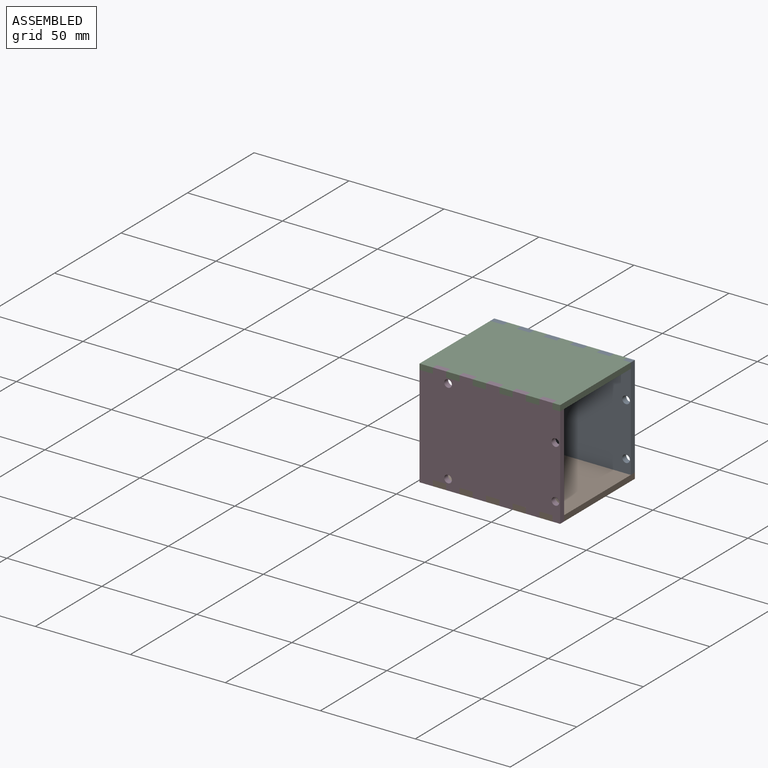
[diagram: assembled view]
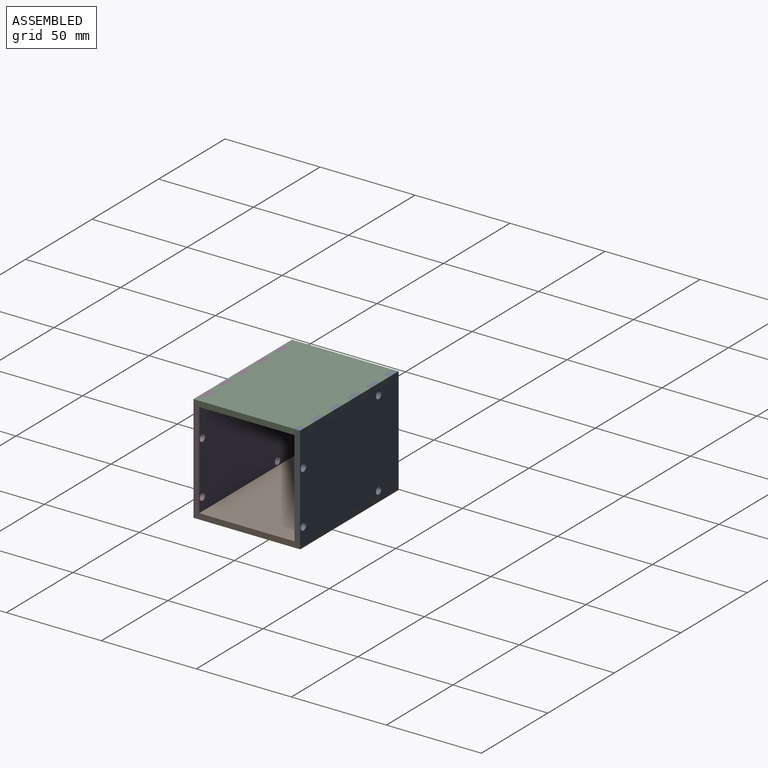
[diagram: assembled view, second angle]
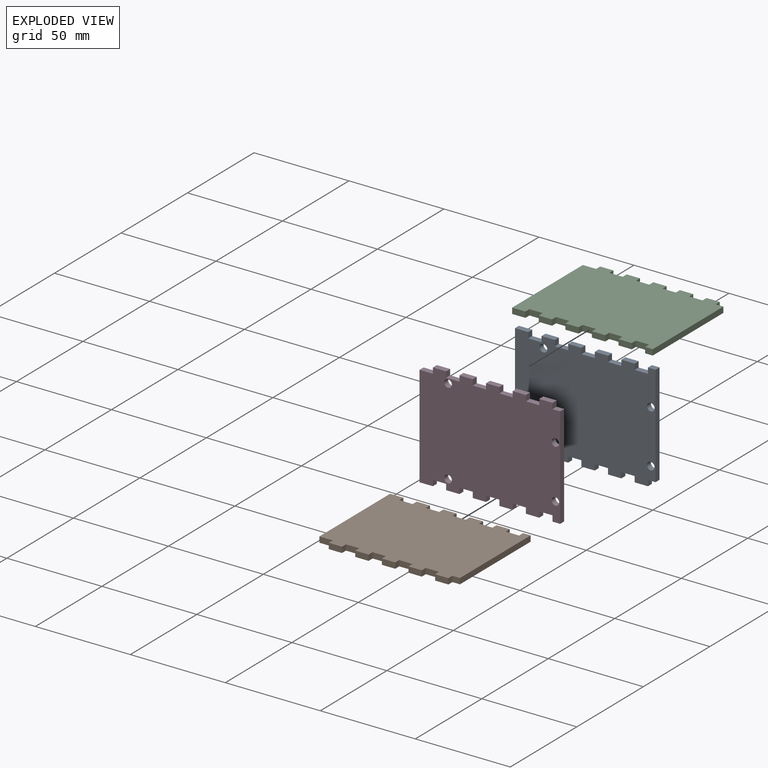
[diagram: exploded view]
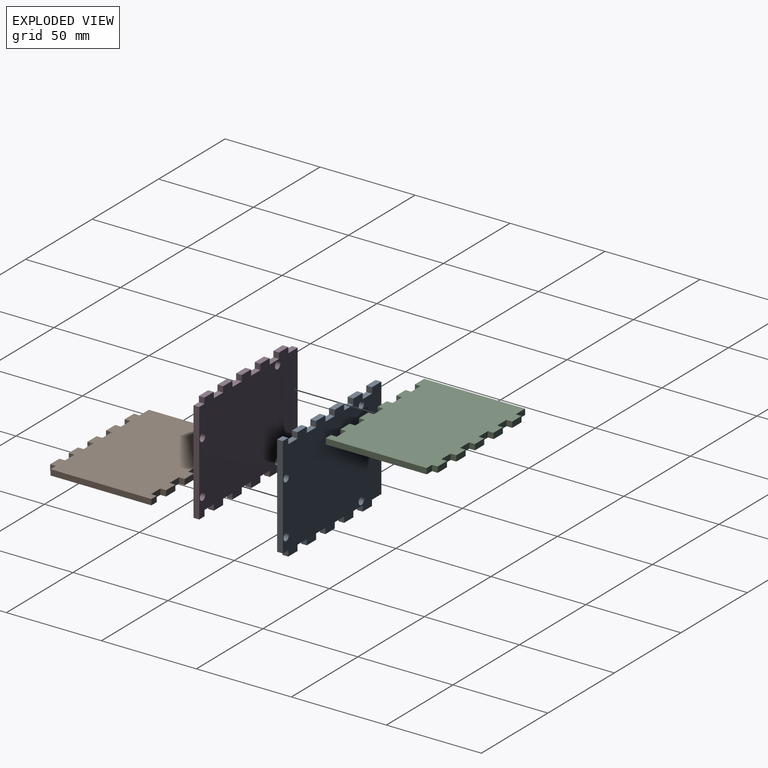
[diagram: exploded view, second angle]
ASSEMBLY  parts=4 mates=3
PART A: 50 faces, bbox 74x56.5x3 mm
  f0: plane 74x56.5mm, normal (0,0,1), area 3908.7mm2, adj f2,f3,f4,f5,f6,f7,f8,f9
  f1: plane 74x56.5mm, normal (0,0,-1), area 3908.7mm2, adj f2,f3,f4,f5,f6,f7,f8,f9
  f2: plane 53.5x3mm, normal (-1,0,0), area 160.5mm2, adj f0,f1,f3,f45
  f3: plane 7x3mm, normal (0,-1,0), area 21mm2, adj f0,f1,f2,f4
  f4: plane 3x3mm, normal (-1,0,0), area 9mm2, adj f0,f1,f3,f5
  f5: plane 7x3mm, normal (0,-1,0), area 21mm2, adj f0,f1,f4,f6
  f6: plane 3x3mm, normal (1,0,0), area 9mm2, adj f0,f1,f5,f7
  f7: plane 7x3mm, normal (0,-1,0), area 21mm2, adj f0,f1,f6,f8
  f8: plane 3x3mm, normal (-1,0,0), area 9mm2, adj f0,f1,f7,f9
  f9: plane 7x3mm, normal (0,-1,0), area 21mm2, adj f0,f1,f8,f10
  f10: plane 3x3mm, normal (1,0,0), area 9mm2, adj f0,f1,f9,f11
  f11: plane 7x3mm, normal (0,-1,0), area 21mm2, adj f0,f1,f10,f12
  f12: plane 3x3mm, normal (-1,0,0), area 9mm2, adj f0,f1,f11,f13
  f13: plane 7x3mm, normal (0,-1,0), area 21mm2, adj f0,f1,f12,f14
  f14: plane 3x3mm, normal (1,0,0), area 9mm2, adj f0,f1,f13,f15
  f15: plane 7x3mm, normal (0,-1,0), area 21mm2, adj f0,f1,f14,f16
  f16: plane 3x3mm, normal (-1,0,0), area 9mm2, adj f0,f1,f15,f17
  f17: plane 7x3mm, normal (0,-1,0), area 21mm2, adj f0,f1,f16,f18
  f18: plane 3x3mm, normal (1,0,0), area 9mm2, adj f0,f1,f17,f19
  f19: plane 7x3mm, normal (0,-1,0), area 21mm2, adj f0,f1,f18,f20
  f20: plane 3x3mm, normal (-1,0,0), area 9mm2, adj f0,f1,f19,f21
  f21: plane 7x3mm, normal (0,-1,0), area 21mm2, adj f0,f1,f20,f22
  f22: plane 3x3mm, normal (1,0,0), area 9mm2, adj f0,f1,f21,f23
  f23: plane 4x3mm, normal (0,-1,0), area 12mm2, adj f0,f1,f22,f24
  f24: plane 53.5x3mm, normal (1,0,0), area 160.5mm2, adj f0,f1,f23,f25
  f25: plane 4x3mm, normal (0,1,0), area 12mm2, adj f0,f1,f24,f26
  f26: plane 3x3mm, normal (-1,0,0), area 9mm2, adj f0,f1,f25,f27
  f27: plane 7x3mm, normal (0,1,0), area 21mm2, adj f0,f1,f26,f28
  f28: plane 3x3mm, normal (1,0,0), area 9mm2, adj f0,f1,f27,f29
  f29: plane 7x3mm, normal (0,1,0), area 21mm2, adj f0,f1,f28,f30
  f30: plane 3x3mm, normal (-1,0,0), area 9mm2, adj f0,f1,f29,f31
  f31: plane 7x3mm, normal (0,1,0), area 21mm2, adj f0,f1,f30,f32
  f32: plane 3x3mm, normal (1,0,0), area 9mm2, adj f0,f1,f31,f33
  f33: plane 7x3mm, normal (0,1,0), area 21mm2, adj f0,f1,f32,f34
  f34: plane 3x3mm, normal (-1,0,0), area 9mm2, adj f0,f1,f33,f35
  f35: plane 7x3mm, normal (0,1,0), area 21mm2, adj f0,f1,f34,f36
  f36: plane 3x3mm, normal (1,0,0), area 9mm2, adj f0,f1,f35,f37
  f37: plane 7x3mm, normal (0,1,0), area 21mm2, adj f0,f1,f36,f38
  f38: plane 3x3mm, normal (-1,0,0), area 9mm2, adj f0,f1,f37,f39
  f39: plane 7x3mm, normal (0,1,0), area 21mm2, adj f0,f1,f38,f40
  f40: plane 3x3mm, normal (1,0,0), area 9mm2, adj f0,f1,f39,f41
  f41: plane 7x3mm, normal (0,1,0), area 21mm2, adj f0,f1,f40,f42
  f42: plane 3x3mm, normal (-1,0,0), area 9mm2, adj f0,f1,f41,f43
  f43: plane 7x3mm, normal (0,1,0), area 21mm2, adj f0,f1,f42,f44
  f44: plane 3x3mm, normal (1,0,0), area 9mm2, adj f0,f1,f43,f45
  f45: plane 7x3mm, normal (0,1,0), area 21mm2, adj f0,f1,f2,f44
  f46: cylinder r=2mm len=4mm, axis (0,0,1), area 37.7mm2, adj f0,f1
  f47: cylinder r=2mm len=4mm, axis (0,0,1), area 37.7mm2, adj f0,f1
  f48: cylinder r=2mm len=4mm, axis (0,0,1), area 37.7mm2, adj f0,f1
  f49: cylinder r=2mm len=4mm, axis (0,0,1), area 37.7mm2, adj f0,f1
PART B: 46 faces, bbox 74x56.2x3 mm
  f0: plane 53.15x3mm, normal (-1,0,0), area 159.4mm2, adj f1,f43,f44,f45
  f1: plane 7x3mm, normal (0,-1,0), area 21mm2, adj f0,f2,f44,f45
  f2: plane 3x3mm, normal (-1,0,0), area 9mm2, adj f1,f3,f44,f45
  f3: plane 7x3mm, normal (0,-1,0), area 21mm2, adj f2,f4,f44,f45
  f4: plane 3x3mm, normal (1,0,0), area 9mm2, adj f3,f5,f44,f45
  f5: plane 7x3mm, normal (0,-1,0), area 21mm2, adj f4,f6,f44,f45
  f6: plane 3x3mm, normal (-1,0,0), area 9mm2, adj f5,f7,f44,f45
  f7: plane 7x3mm, normal (0,-1,0), area 21mm2, adj f6,f8,f44,f45
  f8: plane 3x3mm, normal (1,0,0), area 9mm2, adj f7,f9,f44,f45
  f9: plane 7x3mm, normal (0,-1,0), area 21mm2, adj f8,f10,f44,f45
  f10: plane 3x3mm, normal (-1,0,0), area 9mm2, adj f9,f11,f44,f45
  f11: plane 7x3mm, normal (0,-1,0), area 21mm2, adj f10,f12,f44,f45
  f12: plane 3x3mm, normal (1,0,0), area 9mm2, adj f11,f13,f44,f45
  f13: plane 7x3mm, normal (0,-1,0), area 21mm2, adj f12,f14,f44,f45
  f14: plane 3x3mm, normal (-1,0,0), area 9mm2, adj f13,f15,f44,f45
  f15: plane 7x3mm, normal (0,-1,0), area 21mm2, adj f14,f16,f44,f45
  f16: plane 3x3mm, normal (1,0,0), area 9mm2, adj f15,f17,f44,f45
  f17: plane 7x3mm, normal (0,-1,0), area 21mm2, adj f16,f18,f44,f45
  f18: plane 3x3mm, normal (-1,0,0), area 9mm2, adj f17,f19,f44,f45
  f19: plane 7x3mm, normal (0,-1,0), area 21mm2, adj f18,f20,f44,f45
  f20: plane 3x3mm, normal (1,0,0), area 9mm2, adj f19,f21,f44,f45
  f21: plane 4x3mm, normal (0,-1,0), area 12mm2, adj f20,f22,f44,f45
  f22: plane 53.15x3mm, normal (1,0,0), area 159.4mm2, adj f21,f23,f44,f45
  f23: plane 4x3mm, normal (0,1,0), area 12mm2, adj f22,f24,f44,f45
  f24: plane 3x3mm, normal (-1,0,0), area 9mm2, adj f23,f25,f44,f45
  f25: plane 7x3mm, normal (0,1,0), area 21mm2, adj f24,f26,f44,f45
  f26: plane 3x3mm, normal (1,0,0), area 9mm2, adj f25,f27,f44,f45
  f27: plane 7x3mm, normal (0,1,0), area 21mm2, adj f26,f28,f44,f45
  f28: plane 3x3mm, normal (-1,0,0), area 9mm2, adj f27,f29,f44,f45
  f29: plane 7x3mm, normal (0,1,0), area 21mm2, adj f28,f30,f44,f45
  f30: plane 3x3mm, normal (1,0,0), area 9mm2, adj f29,f31,f44,f45
  f31: plane 7x3mm, normal (0,1,0), area 21mm2, adj f30,f32,f44,f45
  f32: plane 3x3mm, normal (-1,0,0), area 9mm2, adj f31,f33,f44,f45
  f33: plane 7x3mm, normal (0,1,0), area 21mm2, adj f32,f34,f44,f45
  f34: plane 3x3mm, normal (1,0,0), area 9mm2, adj f33,f35,f44,f45
  f35: plane 7x3mm, normal (0,1,0), area 21mm2, adj f34,f36,f44,f45
  f36: plane 3x3mm, normal (-1,0,0), area 9mm2, adj f35,f37,f44,f45
  f37: plane 7x3mm, normal (0,1,0), area 21mm2, adj f36,f38,f44,f45
  f38: plane 3x3mm, normal (1,0,0), area 9mm2, adj f37,f39,f44,f45
  f39: plane 7x3mm, normal (0,1,0), area 21mm2, adj f38,f40,f44,f45
  f40: plane 3x3mm, normal (-1,0,0), area 9mm2, adj f39,f41,f44,f45
  f41: plane 7x3mm, normal (0,1,0), area 21mm2, adj f40,f42,f44,f45
  f42: plane 3x3mm, normal (1,0,0), area 9mm2, adj f41,f43,f44,f45
  f43: plane 7x3mm, normal (0,1,0), area 21mm2, adj f0,f42,f44,f45
  f44: plane 74x56.15mm, normal (0,0,1), area 3933.1mm2, adj f0,f1,f2,f3,f4,f5,f6,f7
  f45: plane 74x56.15mm, normal (0,0,-1), area 3933.1mm2, adj f0,f1,f2,f3,f4,f5,f6,f7
PART C: same geometry as B
PART D: 50 faces, bbox 74x56.5x3 mm
  f0: plane 74x56.5mm, normal (0,0,1), area 3908.7mm2, adj f2,f3,f4,f5,f6,f7,f8,f9
  f1: plane 74x56.5mm, normal (0,0,-1), area 3908.7mm2, adj f2,f3,f4,f5,f6,f7,f8,f9
  f2: plane 53.5x3mm, normal (-1,0,0), area 160.5mm2, adj f0,f1,f3,f45
  f3: plane 7x3mm, normal (0,-1,0), area 21mm2, adj f0,f1,f2,f4
  f4: plane 3x3mm, normal (-1,0,0), area 9mm2, adj f0,f1,f3,f5
  f5: plane 7x3mm, normal (0,-1,0), area 21mm2, adj f0,f1,f4,f6
  f6: plane 3x3mm, normal (1,0,0), area 9mm2, adj f0,f1,f5,f7
  f7: plane 7x3mm, normal (0,-1,0), area 21mm2, adj f0,f1,f6,f8
  f8: plane 3x3mm, normal (-1,0,0), area 9mm2, adj f0,f1,f7,f9
  f9: plane 7x3mm, normal (0,-1,0), area 21mm2, adj f0,f1,f8,f10
  f10: plane 3x3mm, normal (1,0,0), area 9mm2, adj f0,f1,f9,f11
  f11: plane 7x3mm, normal (0,-1,0), area 21mm2, adj f0,f1,f10,f12
  f12: plane 3x3mm, normal (-1,0,0), area 9mm2, adj f0,f1,f11,f13
  f13: plane 7x3mm, normal (0,-1,0), area 21mm2, adj f0,f1,f12,f14
  f14: plane 3x3mm, normal (1,0,0), area 9mm2, adj f0,f1,f13,f15
  f15: plane 7x3mm, normal (0,-1,0), area 21mm2, adj f0,f1,f14,f16
  f16: plane 3x3mm, normal (-1,0,0), area 9mm2, adj f0,f1,f15,f17
  f17: plane 7x3mm, normal (0,-1,0), area 21mm2, adj f0,f1,f16,f18
  f18: plane 3x3mm, normal (1,0,0), area 9mm2, adj f0,f1,f17,f19
  f19: plane 7x3mm, normal (0,-1,0), area 21mm2, adj f0,f1,f18,f20
  f20: plane 3x3mm, normal (-1,0,0), area 9mm2, adj f0,f1,f19,f21
  f21: plane 7x3mm, normal (0,-1,0), area 21mm2, adj f0,f1,f20,f22
  f22: plane 3x3mm, normal (1,0,0), area 9mm2, adj f0,f1,f21,f23
  f23: plane 4x3mm, normal (0,-1,0), area 12mm2, adj f0,f1,f22,f24
  f24: plane 53.5x3mm, normal (1,0,0), area 160.5mm2, adj f0,f1,f23,f25
  f25: plane 4x3mm, normal (0,1,0), area 12mm2, adj f0,f1,f24,f26
  f26: plane 3x3mm, normal (-1,0,0), area 9mm2, adj f0,f1,f25,f27
  f27: plane 7x3mm, normal (0,1,0), area 21mm2, adj f0,f1,f26,f28
  f28: plane 3x3mm, normal (1,0,0), area 9mm2, adj f0,f1,f27,f29
  f29: plane 7x3mm, normal (0,1,0), area 21mm2, adj f0,f1,f28,f30
  f30: plane 3x3mm, normal (-1,0,0), area 9mm2, adj f0,f1,f29,f31
  f31: plane 7x3mm, normal (0,1,0), area 21mm2, adj f0,f1,f30,f32
  f32: plane 3x3mm, normal (1,0,0), area 9mm2, adj f0,f1,f31,f33
  f33: plane 7x3mm, normal (0,1,0), area 21mm2, adj f0,f1,f32,f34
  f34: plane 3x3mm, normal (-1,0,0), area 9mm2, adj f0,f1,f33,f35
  f35: plane 7x3mm, normal (0,1,0), area 21mm2, adj f0,f1,f34,f36
  f36: plane 3x3mm, normal (1,0,0), area 9mm2, adj f0,f1,f35,f37
  f37: plane 7x3mm, normal (0,1,0), area 21mm2, adj f0,f1,f36,f38
  f38: plane 3x3mm, normal (-1,0,0), area 9mm2, adj f0,f1,f37,f39
  f39: plane 7x3mm, normal (0,1,0), area 21mm2, adj f0,f1,f38,f40
  f40: plane 3x3mm, normal (1,0,0), area 9mm2, adj f0,f1,f39,f41
  f41: plane 7x3mm, normal (0,1,0), area 21mm2, adj f0,f1,f40,f42
  f42: plane 3x3mm, normal (-1,0,0), area 9mm2, adj f0,f1,f41,f43
  f43: plane 7x3mm, normal (0,1,0), area 21mm2, adj f0,f1,f42,f44
  f44: plane 3x3mm, normal (1,0,0), area 9mm2, adj f0,f1,f43,f45
  f45: plane 7x3mm, normal (0,1,0), area 21mm2, adj f0,f1,f2,f44
  f46: cylinder r=2mm len=4mm, axis (0,0,-1), area 37.7mm2, adj f0,f1
  f47: cylinder r=2mm len=4mm, axis (0,0,-1), area 37.7mm2, adj f0,f1
  f48: cylinder r=2mm len=4mm, axis (0,0,-1), area 37.7mm2, adj f0,f1
  f49: cylinder r=2mm len=4mm, axis (0,0,-1), area 37.7mm2, adj f0,f1
PLACE A rot(axis=(1,0,0),90deg) t=(-9.63,78.58,21.15)mm
PLACE B t=(-9.63,-9.12,-7.1)mm
PLACE C rot(axis=(1,0,0),180deg) t=(-9.63,-9.47,49.4)mm
PLACE D rot(axis=(-1,0,0),90deg) t=(-9.63,19.63,21.15)mm
MATE parallel C.f2 <-> A.f44  axis (-1,0,0) through (-39.63,17.28,47.9)mm
MATE parallel A.f22 <-> B.f24  axis (1,0,0) through (23.37,17.28,-5.6)mm
MATE parallel D.f42 <-> B.f4  axis (-1,0,0) through (-32.63,-35.87,-5.6)mm
